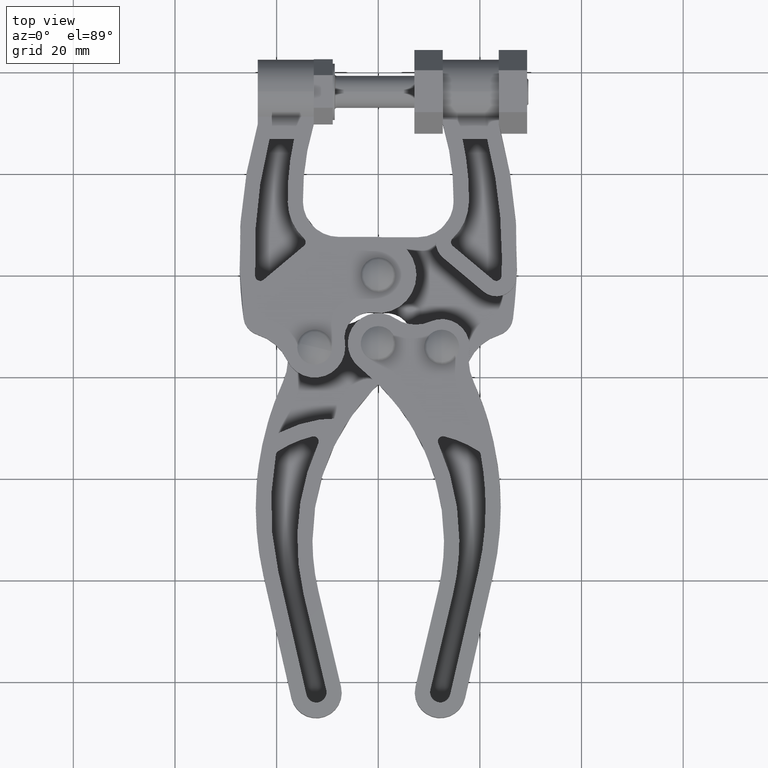
[diagram: clean part render]
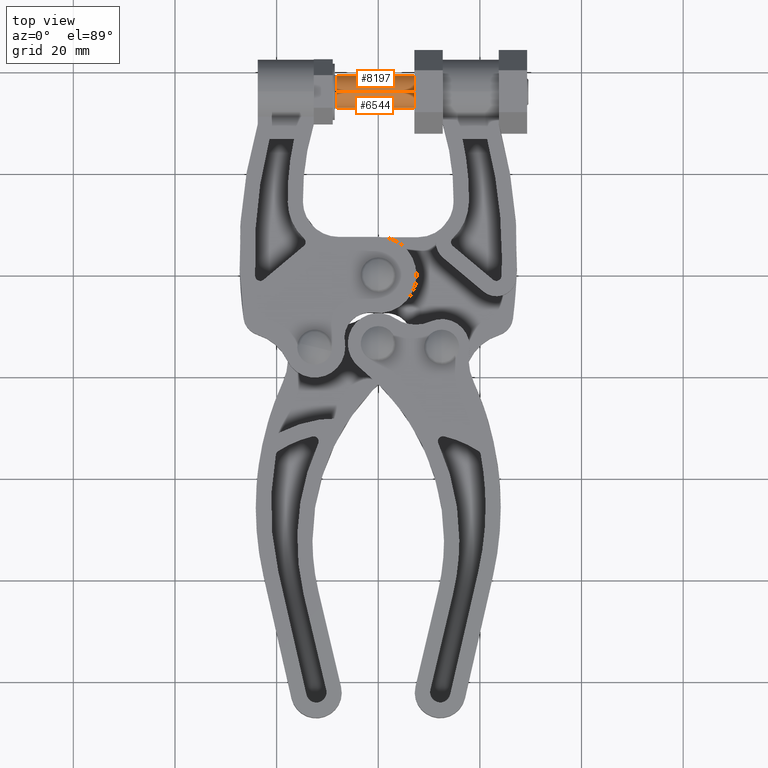
[diagram: same view with one multi-face feature highlighted, each face labeled with its STEP entity id]
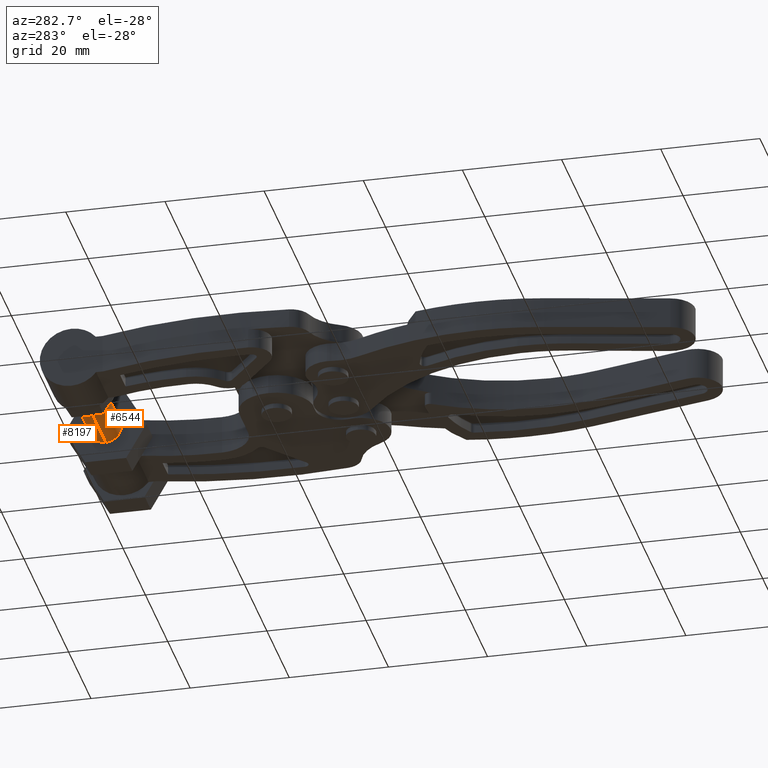
[diagram: same view with one multi-face feature highlighted, each face labeled with its STEP entity id]
A machine part, top view. The highlighted faces form ONE feature: a constant-radius fillet chain: 2 tangent blend faces with common blend radius 3.175 mm. The faces share edges in the B-rep.
A second angle (auxiliary view) of the same feature is appended — it is thin or edge-on in the first view.
Their STEP definitions:
[1] entity #6544 (Cylinder):
#160 = EDGE_CURVE ( 'NONE', #6125, #1087, #1967, .T. ) ;
#212 = CARTESIAN_POINT ( 'NONE',  ( -12.70000000000002200, 36.09999999999997300, 0.1000000000004903600 ) ) ;
#336 = LINE ( 'NONE', #3653, #1908 ) ;
#1087 = VERTEX_POINT ( 'NONE', #5898 ) ;
#1186 = DIRECTION ( 'NONE',  ( -1.000000000000000000, 0.0000000000000000000, 0.0000000000000000000 ) ) ;
#1281 = EDGE_LOOP ( 'NONE', ( #6921, #3633, #2981, #2622 ) ) ;
#1309 = VERTEX_POINT ( 'NONE', #2208 ) ;
#1523 = DIRECTION ( 'NONE',  ( 1.000000000000000000, 0.0000000000000000000, -0.0000000000000000000 ) ) ;
#1908 = VECTOR ( 'NONE', #4025, 1000.000000000000000 ) ;
#1967 = LINE ( 'NONE', #7227, #7096 ) ;
#2208 = CARTESIAN_POINT ( 'NONE',  ( -8.178800000000020300, 36.09999999999997300, 3.275000000000489300 ) ) ;
#2373 = CYLINDRICAL_SURFACE ( 'NONE', #3134, 3.174999999999998900 ) ;
#2622 = ORIENTED_EDGE ( 'NONE', *, *, #2748, .T. ) ;
#2748 = EDGE_CURVE ( 'NONE', #1309, #1087, #8182, .T. ) ;
#2974 = CARTESIAN_POINT ( 'NONE',  ( 7.111999999999994800, 36.09999999999997300, 3.275000000000489300 ) ) ;
#2981 = ORIENTED_EDGE ( 'NONE', *, *, #3256, .T. ) ;
#3134 = AXIS2_PLACEMENT_3D ( 'NONE', #212, #7549, #4914 ) ;
#3256 = EDGE_CURVE ( 'NONE', #5400, #1309, #336, .T. ) ;
#3633 = ORIENTED_EDGE ( 'NONE', *, *, #5075, .T. ) ;
#3653 = CARTESIAN_POINT ( 'NONE',  ( -12.70000000000002200, 36.09999999999997300, 3.275000000000489300 ) ) ;
#3825 = FACE_OUTER_BOUND ( 'NONE', #1281, .T. ) ;
#3988 = AXIS2_PLACEMENT_3D ( 'NONE', #5173, #1186, #5860 ) ;
#4025 = DIRECTION ( 'NONE',  ( -1.000000000000000000, -0.0000000000000000000, -0.0000000000000000000 ) ) ;
#4914 = DIRECTION ( 'NONE',  ( 0.0000000000000000000, 0.0000000000000000000, 1.000000000000000000 ) ) ;
#5024 = AXIS2_PLACEMENT_3D ( 'NONE', #6205, #1523, #5519 ) ;
#5075 = EDGE_CURVE ( 'NONE', #6125, #5400, #6512, .T. ) ;
#5173 = CARTESIAN_POINT ( 'NONE',  ( 7.111999999999994800, 36.09999999999997300, 0.1000000000004903600 ) ) ;
#5400 = VERTEX_POINT ( 'NONE', #2974 ) ;
#5519 = DIRECTION ( 'NONE',  ( 0.0000000000000000000, 0.0000000000000000000, -1.000000000000000000 ) ) ;
#5860 = DIRECTION ( 'NONE',  ( 0.0000000000000000000, 0.0000000000000000000, 1.000000000000000000 ) ) ;
#5898 = CARTESIAN_POINT ( 'NONE',  ( -8.178800000000020300, 36.09999999999997300, -3.074999999999508600 ) ) ;
#6125 = VERTEX_POINT ( 'NONE', #8437 ) ;
#6205 = CARTESIAN_POINT ( 'NONE',  ( -8.178800000000020300, 36.09999999999997300, 0.1000000000004903600 ) ) ;
#6512 = CIRCLE ( 'NONE', #3988, 3.174999999999998900 ) ;
#6544 = ADVANCED_FACE ( 'NONE', ( #3825 ), #2373, .T. ) ;
#6555 = DIRECTION ( 'NONE',  ( -1.000000000000000000, -0.0000000000000000000, -0.0000000000000000000 ) ) ;
#6921 = ORIENTED_EDGE ( 'NONE', *, *, #160, .F. ) ;
#7096 = VECTOR ( 'NONE', #6555, 1000.000000000000000 ) ;
#7227 = CARTESIAN_POINT ( 'NONE',  ( -12.70000000000002200, 36.09999999999997300, -3.074999999999508600 ) ) ;
#7549 = DIRECTION ( 'NONE',  ( -1.000000000000000000, -0.0000000000000000000, -0.0000000000000000000 ) ) ;
#8182 = CIRCLE ( 'NONE', #5024, 3.174999999999998900 ) ;
#8437 = CARTESIAN_POINT ( 'NONE',  ( 7.111999999999994800, 36.09999999999997300, -3.074999999999508600 ) ) ;
[2] entity #8197 (Cylinder):
#69 = ORIENTED_EDGE ( 'NONE', *, *, #3256, .F. ) ;
#154 = DIRECTION ( 'NONE',  ( -1.000000000000000000, 0.0000000000000000000, 0.0000000000000000000 ) ) ;
#160 = EDGE_CURVE ( 'NONE', #6125, #1087, #1967, .T. ) ;
#336 = LINE ( 'NONE', #3653, #1908 ) ;
#959 = FACE_OUTER_BOUND ( 'NONE', #6180, .T. ) ;
#995 = ORIENTED_EDGE ( 'NONE', *, *, #5378, .T. ) ;
#1087 = VERTEX_POINT ( 'NONE', #5898 ) ;
#1309 = VERTEX_POINT ( 'NONE', #2208 ) ;
#1380 = CIRCLE ( 'NONE', #2273, 3.174999999999998900 ) ;
#1635 = DIRECTION ( 'NONE',  ( 1.000000000000000000, 0.0000000000000000000, -0.0000000000000000000 ) ) ;
#1908 = VECTOR ( 'NONE', #4025, 1000.000000000000000 ) ;
#1967 = LINE ( 'NONE', #7227, #7096 ) ;
#2208 = CARTESIAN_POINT ( 'NONE',  ( -8.178800000000020300, 36.09999999999997300, 3.275000000000489300 ) ) ;
#2273 = AXIS2_PLACEMENT_3D ( 'NONE', #4836, #154, #4136 ) ;
#2962 = DIRECTION ( 'NONE',  ( 0.0000000000000000000, 0.0000000000000000000, 1.000000000000000000 ) ) ;
#2974 = CARTESIAN_POINT ( 'NONE',  ( 7.111999999999994800, 36.09999999999997300, 3.275000000000489300 ) ) ;
#3189 = EDGE_CURVE ( 'NONE', #5400, #6125, #1380, .T. ) ;
#3256 = EDGE_CURVE ( 'NONE', #5400, #1309, #336, .T. ) ;
#3577 = DIRECTION ( 'NONE',  ( -1.000000000000000000, -0.0000000000000000000, -0.0000000000000000000 ) ) ;
#3653 = CARTESIAN_POINT ( 'NONE',  ( -12.70000000000002200, 36.09999999999997300, 3.275000000000489300 ) ) ;
#4025 = DIRECTION ( 'NONE',  ( -1.000000000000000000, -0.0000000000000000000, -0.0000000000000000000 ) ) ;
#4136 = DIRECTION ( 'NONE',  ( 0.0000000000000000000, 0.0000000000000000000, 1.000000000000000000 ) ) ;
#4836 = CARTESIAN_POINT ( 'NONE',  ( 7.111999999999994800, 36.09999999999997300, 0.1000000000004903600 ) ) ;
#4942 = ORIENTED_EDGE ( 'NONE', *, *, #160, .T. ) ;
#5378 = EDGE_CURVE ( 'NONE', #1087, #1309, #7960, .T. ) ;
#5400 = VERTEX_POINT ( 'NONE', #2974 ) ;
#5444 = CYLINDRICAL_SURFACE ( 'NONE', #6322, 3.174999999999998900 ) ;
#5630 = CARTESIAN_POINT ( 'NONE',  ( -8.178800000000020300, 36.09999999999997300, 0.1000000000004903600 ) ) ;
#5898 = CARTESIAN_POINT ( 'NONE',  ( -8.178800000000020300, 36.09999999999997300, -3.074999999999508600 ) ) ;
#6125 = VERTEX_POINT ( 'NONE', #8437 ) ;
#6139 = ORIENTED_EDGE ( 'NONE', *, *, #3189, .T. ) ;
#6180 = EDGE_LOOP ( 'NONE', ( #6139, #4942, #995, #69 ) ) ;
#6267 = CARTESIAN_POINT ( 'NONE',  ( -12.70000000000002200, 36.09999999999997300, 0.1000000000004903600 ) ) ;
#6316 = DIRECTION ( 'NONE',  ( 0.0000000000000000000, 0.0000000000000000000, -1.000000000000000000 ) ) ;
#6322 = AXIS2_PLACEMENT_3D ( 'NONE', #6267, #3577, #2962 ) ;
#6555 = DIRECTION ( 'NONE',  ( -1.000000000000000000, -0.0000000000000000000, -0.0000000000000000000 ) ) ;
#7096 = VECTOR ( 'NONE', #6555, 1000.000000000000000 ) ;
#7227 = CARTESIAN_POINT ( 'NONE',  ( -12.70000000000002200, 36.09999999999997300, -3.074999999999508600 ) ) ;
#7960 = CIRCLE ( 'NONE', #8609, 3.174999999999998900 ) ;
#8197 = ADVANCED_FACE ( 'NONE', ( #959 ), #5444, .T. ) ;
#8437 = CARTESIAN_POINT ( 'NONE',  ( 7.111999999999994800, 36.09999999999997300, -3.074999999999508600 ) ) ;
#8609 = AXIS2_PLACEMENT_3D ( 'NONE', #5630, #1635, #6316 ) ;